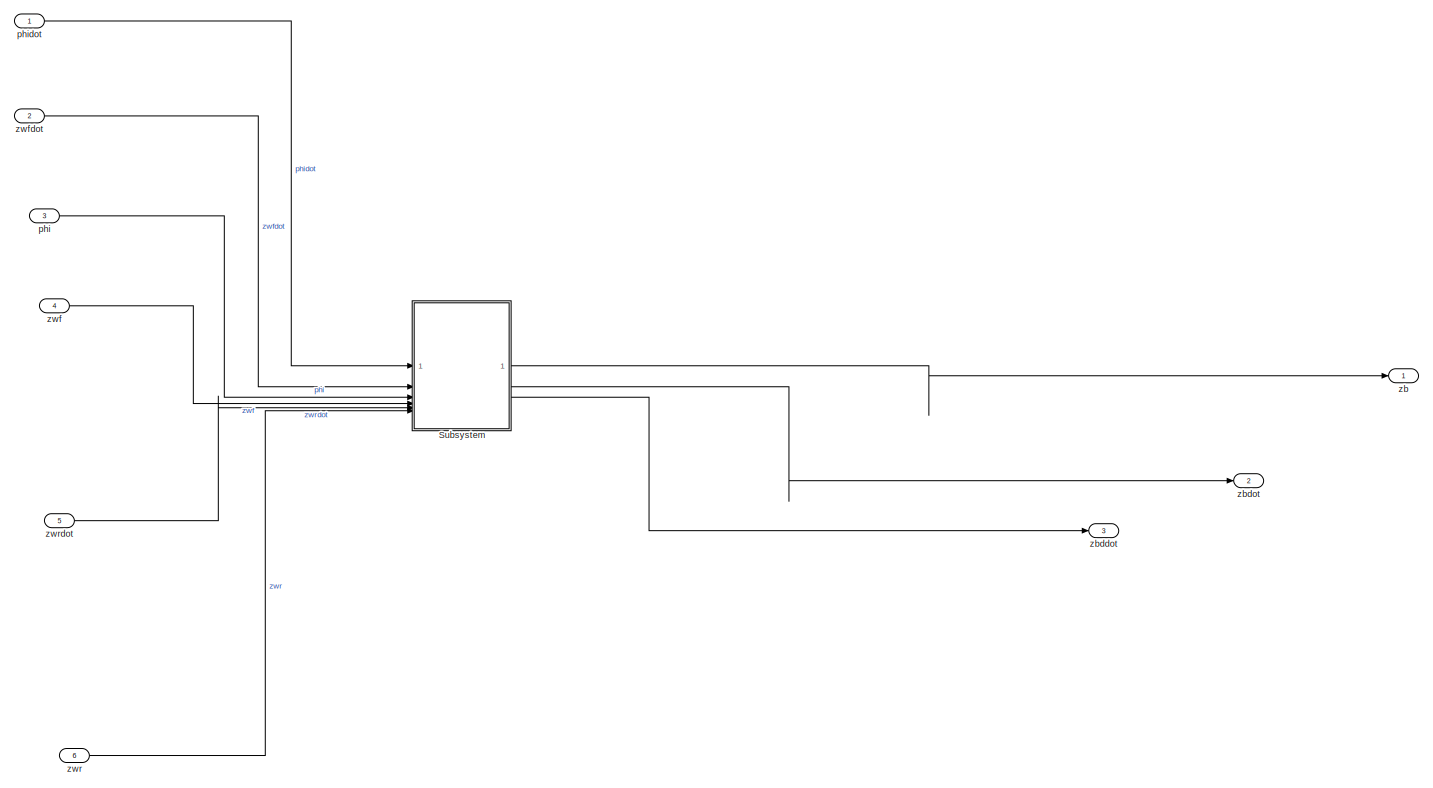
[diagram: root canvas - part 1/2, most of the canvas]
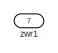
[diagram: root canvas - part 2/2, bottom left region]
MODEL slx_60666c0cbecd
KIND model
CONFIG AbsTol = auto
CONFIG EnableMultiTasking = off
CONFIG FixedStep = auto
CONFIG MaxStep = auto
CONFIG MinStep = auto
CONFIG RelTol = 1e-3
CONFIG SampleTimeConstraint = Unconstrained
CONFIG SolverName = VariableStepAuto
CONFIG StartTime = 0.0
CONFIG StopTime = 10.0
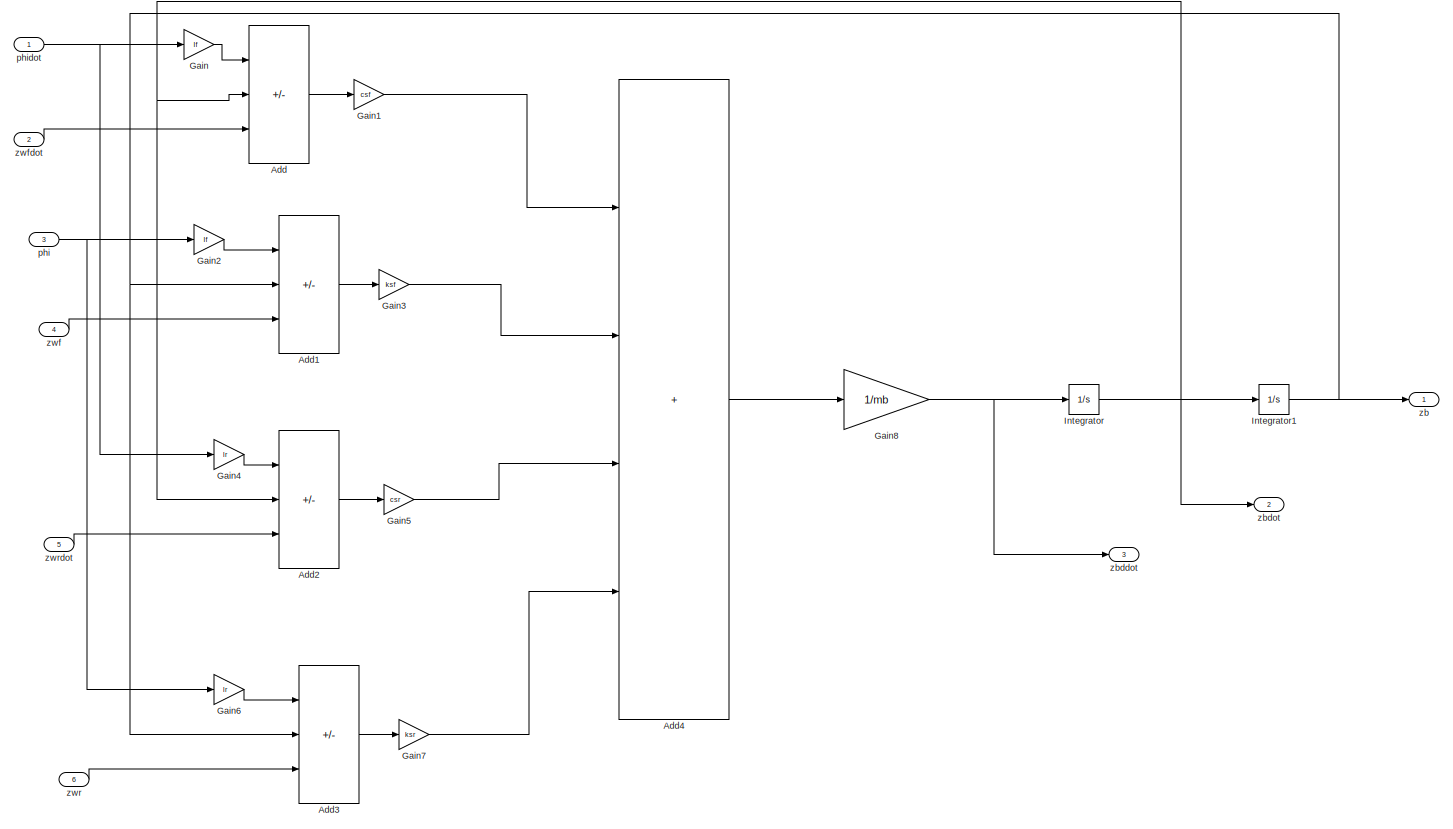
[diagram: Subsystem - part 1/1, most of the canvas]
BLOCK [SubSystem] Subsystem
BLOCK [Sum] Subsystem/Add
  IconShape = rectangular
  Inputs = +-+
BLOCK [Sum] Subsystem/Add1
  IconShape = rectangular
  Inputs = +-+
BLOCK [Sum] Subsystem/Add2
  IconShape = rectangular
  Inputs = --+
BLOCK [Sum] Subsystem/Add3
  IconShape = rectangular
  Inputs = --+
BLOCK [Sum] Subsystem/Add4
  IconShape = rectangular
  Inputs = ++++
BLOCK [Gain] Subsystem/Gain
  Gain = lf
BLOCK [Gain] Subsystem/Gain1
  Gain = csf
BLOCK [Gain] Subsystem/Gain2
  Gain = lf
BLOCK [Gain] Subsystem/Gain3
  Gain = ksf
BLOCK [Gain] Subsystem/Gain4
  Gain = lr
BLOCK [Gain] Subsystem/Gain5
  Gain = csr
BLOCK [Gain] Subsystem/Gain6
  Gain = lr
BLOCK [Gain] Subsystem/Gain7
  Gain = ksr
BLOCK [Gain] Subsystem/Gain8
  Gain = 1/mb
BLOCK [Integrator] Subsystem/Integrator
BLOCK [Integrator] Subsystem/Integrator1
BLOCK [Inport] Subsystem/phi
  Port = 3
BLOCK [Inport] Subsystem/phidot
BLOCK [Outport] Subsystem/zb
BLOCK [Outport] Subsystem/zbddot
  Port = 3
BLOCK [Outport] Subsystem/zbdot
  Port = 2
BLOCK [Inport] Subsystem/zwf
  Port = 4
BLOCK [Inport] Subsystem/zwfdot
  Port = 2
BLOCK [Inport] Subsystem/zwr
  Port = 6
BLOCK [Inport] Subsystem/zwrdot
  Port = 5
BLOCK [Inport] phi
  Port = 3
BLOCK [Inport] phidot
BLOCK [Outport] zb
BLOCK [Outport] zbddot
  Port = 3
BLOCK [Outport] zbdot
  Port = 2
BLOCK [Inport] zwf
  Port = 4
BLOCK [Inport] zwfdot
  Port = 2
BLOCK [Inport] zwr
  Port = 6
BLOCK [Inport] zwr1
  Port = 7
BLOCK [Inport] zwrdot
  Port = 5
LINE Subsystem/Add1:1 -> Subsystem/Gain3:1
LINE Subsystem/Add2:1 -> Subsystem/Gain5:1
LINE Subsystem/Add3:1 -> Subsystem/Gain7:1
LINE Subsystem/Add4:1 -> Subsystem/Gain8:1
LINE Subsystem/Add:1 -> Subsystem/Gain1:1
LINE Subsystem/Gain1:1 -> Subsystem/Add4:1
LINE Subsystem/Gain2:1 -> Subsystem/Add1:1
LINE Subsystem/Gain3:1 -> Subsystem/Add4:2
LINE Subsystem/Gain4:1 -> Subsystem/Add2:1
LINE Subsystem/Gain5:1 -> Subsystem/Add4:3
LINE Subsystem/Gain6:1 -> Subsystem/Add3:1
LINE Subsystem/Gain7:1 -> Subsystem/Add4:4
NET Subsystem/Gain8:1 -> Subsystem/Integrator:1, Subsystem/zbddot:1
LINE Subsystem/Gain:1 -> Subsystem/Add:1
NET Subsystem/Integrator1:1 -> Subsystem/Add1:2, Subsystem/Add3:2, Subsystem/zb:1
NET Subsystem/Integrator:1 -> Subsystem/Add2:2, Subsystem/Add:2, Subsystem/Integrator1:1, Subsystem/zbdot:1
NET Subsystem/phi:1 -> Subsystem/Gain2:1, Subsystem/Gain6:1
NET Subsystem/phidot:1 -> Subsystem/Gain4:1, Subsystem/Gain:1
LINE Subsystem/zwf:1 -> Subsystem/Add1:3
LINE Subsystem/zwfdot:1 -> Subsystem/Add:3
LINE Subsystem/zwr:1 -> Subsystem/Add3:3
LINE Subsystem/zwrdot:1 -> Subsystem/Add2:3
LINE Subsystem:1 -> zb:1
LINE Subsystem:2 -> zbdot:1
LINE Subsystem:3 -> zbddot:1
LINE phi:1 -> Subsystem:3
LINE phidot:1 -> Subsystem:1
LINE zwf:1 -> Subsystem:4
LINE zwfdot:1 -> Subsystem:2
LINE zwr:1 -> Subsystem:6
LINE zwrdot:1 -> Subsystem:5
note: NET lines group one-source signal fan-out (src -> all destinations, sorted); 1:1 wires keep LINE
